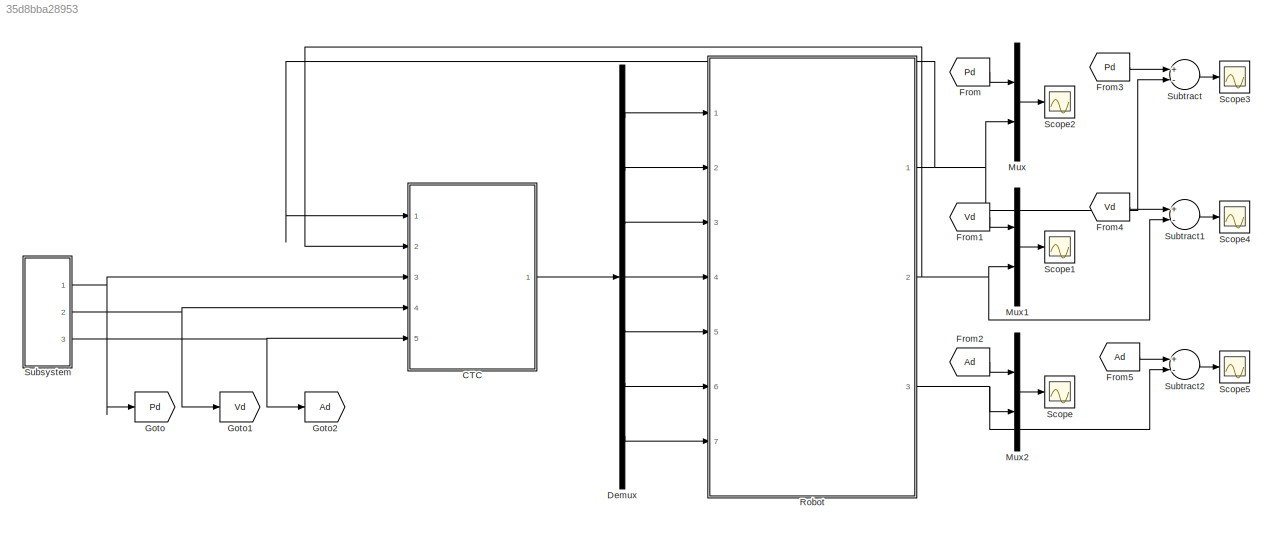
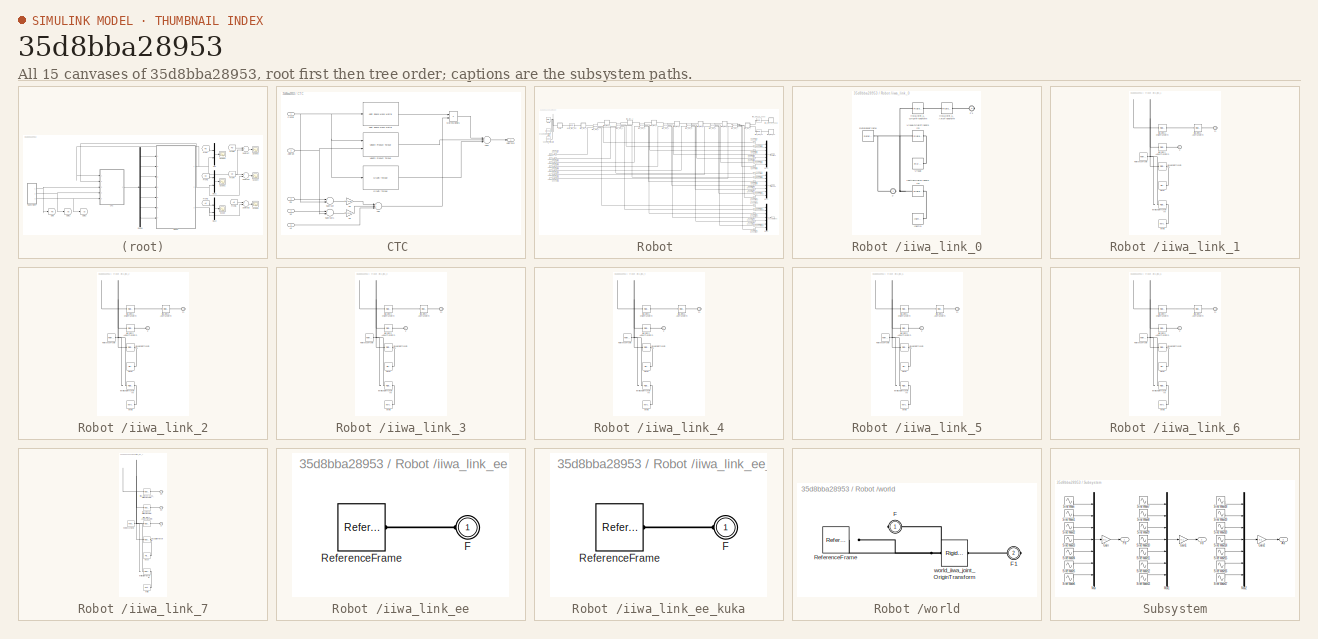
[diagram: thumbnail index - all 15 canvases of the model, root first then tree order]
MODEL slx_35d8bba28953
KIND model
CONFIG AbsTol = auto
CONFIG EnableMultiTasking = off
CONFIG FixedStep = auto
CONFIG MaxStep = auto
CONFIG MinStep = auto
CONFIG RelTol = 1e-3
CONFIG SampleTimeConstraint = Unconstrained
CONFIG Solver = VariableStepAuto
CONFIG SolverName = VariableStepAuto
CONFIG StartTime = 0.0
CONFIG StopTime = 10
BLOCK [SubSystem] CTC 
  Ports = [5, 1]
  RequestExecContextInheritance = off
BLOCK [Inport] CTC /Ad
  IconDisplay = Port number
  Port = 5
BLOCK [Sum] CTC /Add
  InputSameDT = off
  Inputs = +++
  OutDataTypeStr = Inherit: Inherit via internal rule
  Ports = [3, 1]
  SaturateOnIntegerOverflow = off
BLOCK [Sum] CTC /Add1
  InputSameDT = off
  Inputs = +++
  OutDataTypeStr = Inherit: Inherit via internal rule
  Ports = [3, 1]
  SaturateOnIntegerOverflow = off
BLOCK [Inport] CTC /Config
  IconDisplay = Port number
BLOCK [Reference] CTC /Gravity Torque  REF=robotmaniplib/Gravity Torque
  Ports = [1, 1]
  SourceBlock = robotmaniplib/Gravity Torque
  SourceProductBaseCode = RO
  SourceProductName = Robotics System Toolbox
  SourceType = Gravity Torque
BLOCK [Reference] CTC /Joint Space Mass Matrix  REF=robotmaniplib/Joint Space Mass Matrix
  Ports = [1, 1]
  SourceBlock = robotmaniplib/Joint Space Mass Matrix
  SourceProductBaseCode = RO
  SourceProductName = Robotics System Toolbox
  SourceType = Joint Space Mass Matrix
BLOCK [Outport] CTC /JointTorq
  IconDisplay = Port number
  VectorParamsAs1DForOutWhenUnconnected = off
BLOCK [Inport] CTC /JointVel 
  IconDisplay = Port number
  Port = 2
BLOCK [Gain] CTC /Kd
  Gain = 10*2*eye(7)
  Multiplication = Matrix(K*u)
  OutDataTypeStr = Inherit: Inherit via internal rule
  ParamDataTypeStr = Inherit: Inherit via internal rule
  SaturateOnIntegerOverflow = off
BLOCK [Gain] CTC /Kp
  Gain = 10^2*eye(7)
  Multiplication = Matrix(K*u)
  OutDataTypeStr = Inherit: Inherit via internal rule
  ParamDataTypeStr = Inherit: Inherit via internal rule
  SaturateOnIntegerOverflow = off
BLOCK [Product] CTC /MatrixMultiply1
  InputSameDT = off
  Multiplication = Matrix(*)
  OutDataTypeStr = Inherit: Inherit via internal rule
  Ports = [2, 1]
  RndMeth = Floor
  SaturateOnIntegerOverflow = off
BLOCK [Inport] CTC /Pd
  IconDisplay = Port number
  Port = 3
BLOCK [Sum] CTC /Subtract
  InputSameDT = off
  Inputs = +-
  OutDataTypeStr = Inherit: Inherit via internal rule
  Ports = [2, 1]
  SaturateOnIntegerOverflow = off
BLOCK [Sum] CTC /Subtract1
  InputSameDT = off
  Inputs = +-
  OutDataTypeStr = Inherit: Inherit via internal rule
  Ports = [2, 1]
  SaturateOnIntegerOverflow = off
BLOCK [Inport] CTC /Vd
  IconDisplay = Port number
  Port = 4
BLOCK [Reference] CTC /Velocity Product Torque  REF=robotmaniplib/Velocity Product Torque
  Ports = [2, 1]
  SourceBlock = robotmaniplib/Velocity Product Torque
  SourceProductBaseCode = RO
  SourceProductName = Robotics System Toolbox
  SourceType = Velocity Product Torque
BLOCK [Demux] Demux
  DisplayOption = bar
  Outputs = 7
  Ports = [1, 7]
BLOCK [From] From
  GotoTag = Pd
BLOCK [From] From1
  GotoTag = Vd
BLOCK [From] From2
  GotoTag = Ad
BLOCK [From] From3
  GotoTag = Pd
BLOCK [From] From4
  GotoTag = Vd
BLOCK [From] From5
  GotoTag = Ad
BLOCK [Goto] Goto
  GotoTag = Pd
BLOCK [Goto] Goto1
  GotoTag = Vd
BLOCK [Goto] Goto2
  GotoTag = Ad
BLOCK [Mux] Mux
  DisplayOption = bar
  Inputs = 2
  Ports = [2, 1]
BLOCK [Mux] Mux1
  DisplayOption = bar
  Inputs = 2
  Ports = [2, 1]
BLOCK [Mux] Mux2
  DisplayOption = bar
  Inputs = 2
  Ports = [2, 1]
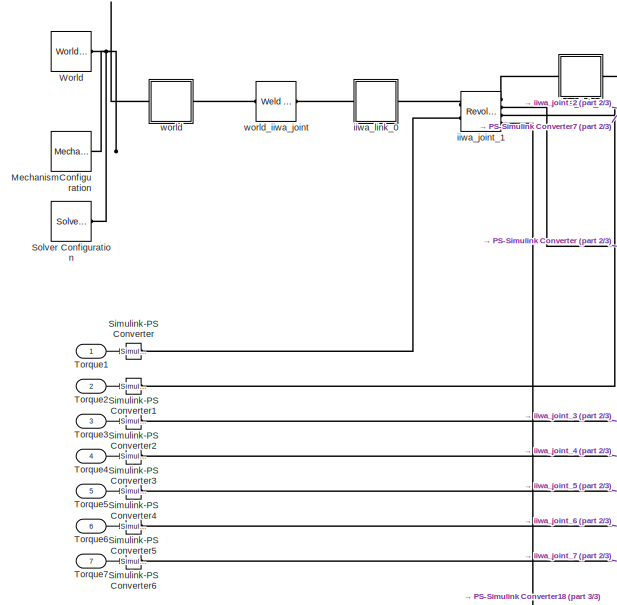
[diagram: Robot  - part 1/3, top left region]
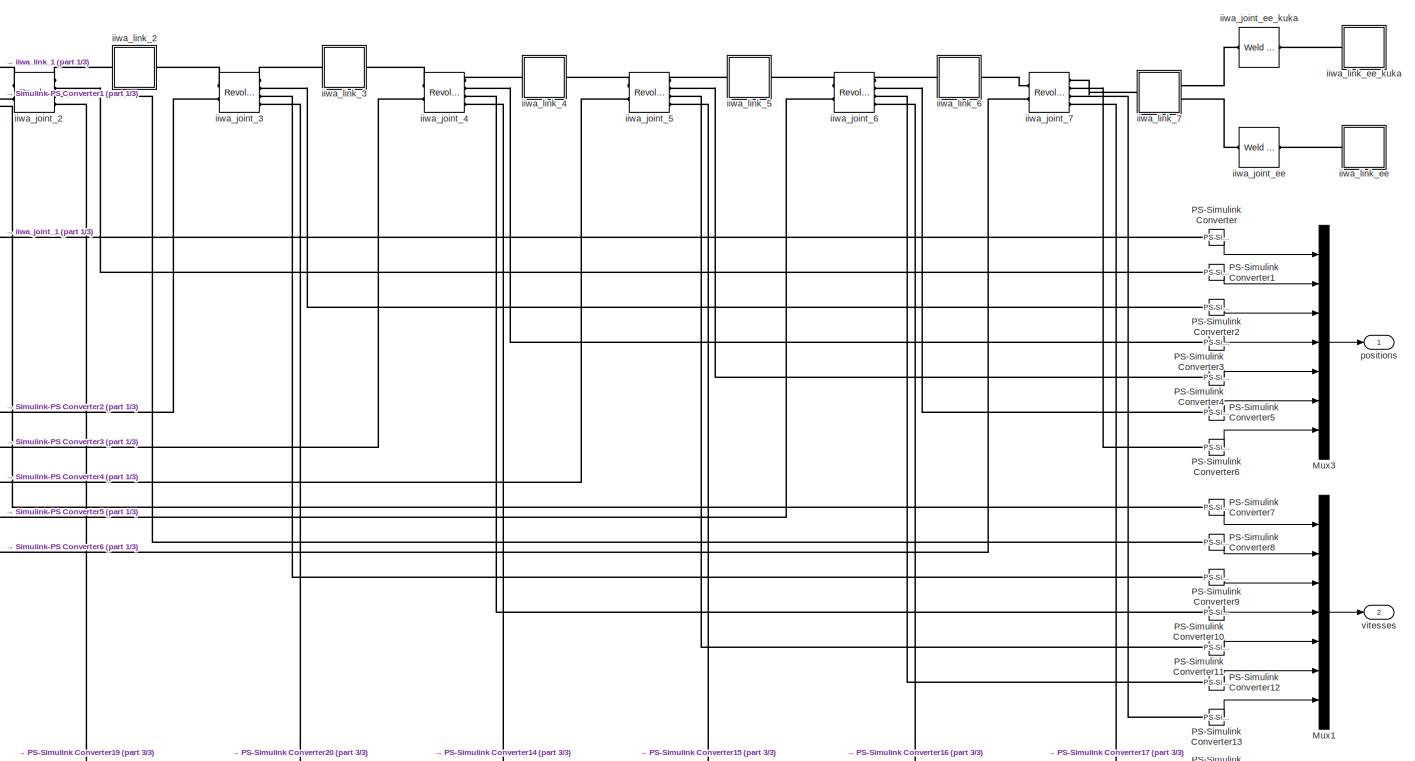
[diagram: Robot  - part 2/3, central region]
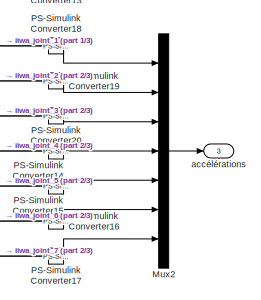
[diagram: Robot  - part 3/3, bottom right region]
BLOCK [SubSystem] Robot 
  Ports = [7, 3]
  RequestExecContextInheritance = off
BLOCK [Reference] Robot /MechanismConfiguration  REF=sm_lib/Utilities/Mechanism
Configuration
  Ports = [0, 0, 0, 0, 0, 0, 1]
  SourceBlock = sm_lib/Utilities/Mechanism\nConfiguration
  SourceProductBaseCode = MS
  SourceProductName = Simscape Multibody
  SourceType = Mechanism\nConfiguration
BLOCK [Mux] Robot /Mux1
  DisplayOption = bar
  Inputs = 7
  Ports = [7, 1]
BLOCK [Mux] Robot /Mux2
  DisplayOption = bar
  Inputs = 7
  Ports = [7, 1]
BLOCK [Mux] Robot /Mux3
  DisplayOption = bar
  Inputs = 7
  Ports = [7, 1]
BLOCK [Reference] Robot /PS-Simulink Converter  REF=nesl_utility/PS-Simulink
Converter
  Ports = [0, 1, 0, 0, 0, 1]
  SourceBlock = nesl_utility/PS-Simulink\nConverter
  SourceProductBaseCode = SS
  SourceProductName = Simscape
  SourceType = PS-Simulink\nConverter
BLOCK [Reference] Robot /PS-Simulink Converter1  REF=nesl_utility/PS-Simulink
Converter
  Ports = [0, 1, 0, 0, 0, 1]
  SourceBlock = nesl_utility/PS-Simulink\nConverter
  SourceProductBaseCode = SS
  SourceProductName = Simscape
  SourceType = PS-Simulink\nConverter
BLOCK [Reference] Robot /PS-Simulink Converter10  REF=nesl_utility/PS-Simulink
Converter
  Ports = [0, 1, 0, 0, 0, 1]
  SourceBlock = nesl_utility/PS-Simulink\nConverter
  SourceProductBaseCode = SS
  SourceProductName = Simscape
  SourceType = PS-Simulink\nConverter
BLOCK [Reference] Robot /PS-Simulink Converter11  REF=nesl_utility/PS-Simulink
Converter
  Ports = [0, 1, 0, 0, 0, 1]
  SourceBlock = nesl_utility/PS-Simulink\nConverter
  SourceProductBaseCode = SS
  SourceProductName = Simscape
  SourceType = PS-Simulink\nConverter
BLOCK [Reference] Robot /PS-Simulink Converter12  REF=nesl_utility/PS-Simulink
Converter
  Ports = [0, 1, 0, 0, 0, 1]
  SourceBlock = nesl_utility/PS-Simulink\nConverter
  SourceProductBaseCode = SS
  SourceProductName = Simscape
  SourceType = PS-Simulink\nConverter
BLOCK [Reference] Robot /PS-Simulink Converter13  REF=nesl_utility/PS-Simulink
Converter
  Ports = [0, 1, 0, 0, 0, 1]
  SourceBlock = nesl_utility/PS-Simulink\nConverter
  SourceProductBaseCode = SS
  SourceProductName = Simscape
  SourceType = PS-Simulink\nConverter
BLOCK [Reference] Robot /PS-Simulink Converter14  REF=nesl_utility/PS-Simulink
Converter
  Ports = [0, 1, 0, 0, 0, 1]
  SourceBlock = nesl_utility/PS-Simulink\nConverter
  SourceProductBaseCode = SS
  SourceProductName = Simscape
  SourceType = PS-Simulink\nConverter
BLOCK [Reference] Robot /PS-Simulink Converter15  REF=nesl_utility/PS-Simulink
Converter
  Ports = [0, 1, 0, 0, 0, 1]
  SourceBlock = nesl_utility/PS-Simulink\nConverter
  SourceProductBaseCode = SS
  SourceProductName = Simscape
  SourceType = PS-Simulink\nConverter
BLOCK [Reference] Robot /PS-Simulink Converter16  REF=nesl_utility/PS-Simulink
Converter
  Ports = [0, 1, 0, 0, 0, 1]
  SourceBlock = nesl_utility/PS-Simulink\nConverter
  SourceProductBaseCode = SS
  SourceProductName = Simscape
  SourceType = PS-Simulink\nConverter
BLOCK [Reference] Robot /PS-Simulink Converter17  REF=nesl_utility/PS-Simulink
Converter
  Ports = [0, 1, 0, 0, 0, 1]
  SourceBlock = nesl_utility/PS-Simulink\nConverter
  SourceProductBaseCode = SS
  SourceProductName = Simscape
  SourceType = PS-Simulink\nConverter
BLOCK [Reference] Robot /PS-Simulink Converter18  REF=nesl_utility/PS-Simulink
Converter
  Ports = [0, 1, 0, 0, 0, 1]
  SourceBlock = nesl_utility/PS-Simulink\nConverter
  SourceProductBaseCode = SS
  SourceProductName = Simscape
  SourceType = PS-Simulink\nConverter
BLOCK [Reference] Robot /PS-Simulink Converter19  REF=nesl_utility/PS-Simulink
Converter
  Ports = [0, 1, 0, 0, 0, 1]
  SourceBlock = nesl_utility/PS-Simulink\nConverter
  SourceProductBaseCode = SS
  SourceProductName = Simscape
  SourceType = PS-Simulink\nConverter
BLOCK [Reference] Robot /PS-Simulink Converter2  REF=nesl_utility/PS-Simulink
Converter
  Ports = [0, 1, 0, 0, 0, 1]
  SourceBlock = nesl_utility/PS-Simulink\nConverter
  SourceProductBaseCode = SS
  SourceProductName = Simscape
  SourceType = PS-Simulink\nConverter
BLOCK [Reference] Robot /PS-Simulink Converter20  REF=nesl_utility/PS-Simulink
Converter
  Ports = [0, 1, 0, 0, 0, 1]
  SourceBlock = nesl_utility/PS-Simulink\nConverter
  SourceProductBaseCode = SS
  SourceProductName = Simscape
  SourceType = PS-Simulink\nConverter
BLOCK [Reference] Robot /PS-Simulink Converter3  REF=nesl_utility/PS-Simulink
Converter
  Ports = [0, 1, 0, 0, 0, 1]
  SourceBlock = nesl_utility/PS-Simulink\nConverter
  SourceProductBaseCode = SS
  SourceProductName = Simscape
  SourceType = PS-Simulink\nConverter
BLOCK [Reference] Robot /PS-Simulink Converter4  REF=nesl_utility/PS-Simulink
Converter
  Ports = [0, 1, 0, 0, 0, 1]
  SourceBlock = nesl_utility/PS-Simulink\nConverter
  SourceProductBaseCode = SS
  SourceProductName = Simscape
  SourceType = PS-Simulink\nConverter
BLOCK [Reference] Robot /PS-Simulink Converter5  REF=nesl_utility/PS-Simulink
Converter
  Ports = [0, 1, 0, 0, 0, 1]
  SourceBlock = nesl_utility/PS-Simulink\nConverter
  SourceProductBaseCode = SS
  SourceProductName = Simscape
  SourceType = PS-Simulink\nConverter
BLOCK [Reference] Robot /PS-Simulink Converter6  REF=nesl_utility/PS-Simulink
Converter
  Ports = [0, 1, 0, 0, 0, 1]
  SourceBlock = nesl_utility/PS-Simulink\nConverter
  SourceProductBaseCode = SS
  SourceProductName = Simscape
  SourceType = PS-Simulink\nConverter
BLOCK [Reference] Robot /PS-Simulink Converter7  REF=nesl_utility/PS-Simulink
Converter
  Ports = [0, 1, 0, 0, 0, 1]
  SourceBlock = nesl_utility/PS-Simulink\nConverter
  SourceProductBaseCode = SS
  SourceProductName = Simscape
  SourceType = PS-Simulink\nConverter
BLOCK [Reference] Robot /PS-Simulink Converter8  REF=nesl_utility/PS-Simulink
Converter
  Ports = [0, 1, 0, 0, 0, 1]
  SourceBlock = nesl_utility/PS-Simulink\nConverter
  SourceProductBaseCode = SS
  SourceProductName = Simscape
  SourceType = PS-Simulink\nConverter
BLOCK [Reference] Robot /PS-Simulink Converter9  REF=nesl_utility/PS-Simulink
Converter
  Ports = [0, 1, 0, 0, 0, 1]
  SourceBlock = nesl_utility/PS-Simulink\nConverter
  SourceProductBaseCode = SS
  SourceProductName = Simscape
  SourceType = PS-Simulink\nConverter
BLOCK [Reference] Robot /Simulink-PS Converter  REF=nesl_utility/Simulink-PS
Converter
  Ports = [1, 0, 0, 0, 0, 0, 1]
  SourceBlock = nesl_utility/Simulink-PS\nConverter
  SourceProductBaseCode = SS
  SourceProductName = Simscape
  SourceType = Simulink-PS\nConverter
BLOCK [Reference] Robot /Simulink-PS Converter1  REF=nesl_utility/Simulink-PS
Converter
  Ports = [1, 0, 0, 0, 0, 0, 1]
  SourceBlock = nesl_utility/Simulink-PS\nConverter
  SourceProductBaseCode = SS
  SourceProductName = Simscape
  SourceType = Simulink-PS\nConverter
BLOCK [Reference] Robot /Simulink-PS Converter2  REF=nesl_utility/Simulink-PS
Converter
  Ports = [1, 0, 0, 0, 0, 0, 1]
  SourceBlock = nesl_utility/Simulink-PS\nConverter
  SourceProductBaseCode = SS
  SourceProductName = Simscape
  SourceType = Simulink-PS\nConverter
BLOCK [Reference] Robot /Simulink-PS Converter3  REF=nesl_utility/Simulink-PS
Converter
  Ports = [1, 0, 0, 0, 0, 0, 1]
  SourceBlock = nesl_utility/Simulink-PS\nConverter
  SourceProductBaseCode = SS
  SourceProductName = Simscape
  SourceType = Simulink-PS\nConverter
BLOCK [Reference] Robot /Simulink-PS Converter4  REF=nesl_utility/Simulink-PS
Converter
  Ports = [1, 0, 0, 0, 0, 0, 1]
  SourceBlock = nesl_utility/Simulink-PS\nConverter
  SourceProductBaseCode = SS
  SourceProductName = Simscape
  SourceType = Simulink-PS\nConverter
BLOCK [Reference] Robot /Simulink-PS Converter5  REF=nesl_utility/Simulink-PS
Converter
  Ports = [1, 0, 0, 0, 0, 0, 1]
  SourceBlock = nesl_utility/Simulink-PS\nConverter
  SourceProductBaseCode = SS
  SourceProductName = Simscape
  SourceType = Simulink-PS\nConverter
BLOCK [Reference] Robot /Simulink-PS Converter6  REF=nesl_utility/Simulink-PS
Converter
  Ports = [1, 0, 0, 0, 0, 0, 1]
  SourceBlock = nesl_utility/Simulink-PS\nConverter
  SourceProductBaseCode = SS
  SourceProductName = Simscape
  SourceType = Simulink-PS\nConverter
BLOCK [Reference] Robot /Solver Configuration  REF=nesl_utility/Solver
Configuration
  Ports = [0, 0, 0, 0, 0, 0, 1]
  SourceBlock = nesl_utility/Solver\nConfiguration
  SourceProductBaseCode = SS
  SourceProductName = Simscape
  SourceType = Solver\nConfiguration
BLOCK [Inport] Robot /Torque1
  IconDisplay = Port number
BLOCK [Inport] Robot /Torque2
  IconDisplay = Port number
  Port = 2
BLOCK [Inport] Robot /Torque3
  IconDisplay = Port number
  Port = 3
BLOCK [Inport] Robot /Torque4
  IconDisplay = Port number
  Port = 4
BLOCK [Inport] Robot /Torque5
  IconDisplay = Port number
  Port = 5
BLOCK [Inport] Robot /Torque6
  IconDisplay = Port number
  Port = 6
BLOCK [Inport] Robot /Torque7
  IconDisplay = Port number
  Port = 7
BLOCK [Reference] Robot /World  REF=sm_lib/Frames and
Transforms/World Frame
  Ports = [0, 0, 0, 0, 0, 0, 1]
  SourceBlock = sm_lib/Frames and\nTransforms/World Frame
  SourceProductBaseCode = MS
  SourceProductName = Simscape Multibody
  SourceType = World Frame
BLOCK [Outport] Robot /accélérations 
  IconDisplay = Port number
  Port = 3
  VectorParamsAs1DForOutWhenUnconnected = off
BLOCK [Reference] Robot /iiwa_joint_1  REF=sm_lib/Joints/Revolute Joint
  Ports = [0, 0, 0, 0, 0, 2, 4]
  SourceBlock = sm_lib/Joints/Revolute Joint
  SourceProductBaseCode = MS
  SourceProductName = Simscape Multibody
  SourceType = Revolute Joint
BLOCK [Reference] Robot /iiwa_joint_2  REF=sm_lib/Joints/Revolute Joint
  Ports = [0, 0, 0, 0, 0, 2, 4]
  SourceBlock = sm_lib/Joints/Revolute Joint
  SourceProductBaseCode = MS
  SourceProductName = Simscape Multibody
  SourceType = Revolute Joint
BLOCK [Reference] Robot /iiwa_joint_3  REF=sm_lib/Joints/Revolute Joint
  Ports = [0, 0, 0, 0, 0, 2, 4]
  SourceBlock = sm_lib/Joints/Revolute Joint
  SourceProductBaseCode = MS
  SourceProductName = Simscape Multibody
  SourceType = Revolute Joint
BLOCK [Reference] Robot /iiwa_joint_4  REF=sm_lib/Joints/Revolute Joint
  Ports = [0, 0, 0, 0, 0, 2, 4]
  SourceBlock = sm_lib/Joints/Revolute Joint
  SourceProductBaseCode = MS
  SourceProductName = Simscape Multibody
  SourceType = Revolute Joint
BLOCK [Reference] Robot /iiwa_joint_5  REF=sm_lib/Joints/Revolute Joint
  Ports = [0, 0, 0, 0, 0, 2, 4]
  SourceBlock = sm_lib/Joints/Revolute Joint
  SourceProductBaseCode = MS
  SourceProductName = Simscape Multibody
  SourceType = Revolute Joint
BLOCK [Reference] Robot /iiwa_joint_6  REF=sm_lib/Joints/Revolute Joint
  Ports = [0, 0, 0, 0, 0, 2, 4]
  SourceBlock = sm_lib/Joints/Revolute Joint
  SourceProductBaseCode = MS
  SourceProductName = Simscape Multibody
  SourceType = Revolute Joint
BLOCK [Reference] Robot /iiwa_joint_7  REF=sm_lib/Joints/Revolute Joint
  Ports = [0, 0, 0, 0, 0, 2, 4]
  SourceBlock = sm_lib/Joints/Revolute Joint
  SourceProductBaseCode = MS
  SourceProductName = Simscape Multibody
  SourceType = Revolute Joint
BLOCK [Reference] Robot /iiwa_joint_ee  REF=sm_lib/Joints/Weld Joint
  Ports = [0, 0, 0, 0, 0, 1, 1]
  SourceBlock = sm_lib/Joints/Weld Joint
  SourceProductBaseCode = MS
  SourceProductName = Simscape Multibody
  SourceType = Weld Joint
BLOCK [Reference] Robot /iiwa_joint_ee_kuka  REF=sm_lib/Joints/Weld Joint
  Ports = [0, 0, 0, 0, 0, 1, 1]
  SourceBlock = sm_lib/Joints/Weld Joint
  SourceProductBaseCode = MS
  SourceProductName = Simscape Multibody
  SourceType = Weld Joint
BLOCK [SubSystem] Robot /iiwa_link_0
  Ports = [0, 0, 0, 0, 0, 1, 1]
  RequestExecContextInheritance = off
BLOCK [PMIOPort] Robot /iiwa_link_0/F
  Side = Left
BLOCK [PMIOPort] Robot /iiwa_link_0/F1
  Port = 2
  Side = Right
BLOCK [Reference] Robot /iiwa_link_0/Inertia  REF=sm_lib/Body Elements/Inertia
  Ports = [0, 0, 0, 0, 0, 0, 1]
  SourceBlock = sm_lib/Body Elements/Inertia
  SourceProductBaseCode = MS
  SourceProductName = Simscape Multibody
  SourceType = Inertia
BLOCK [Reference] Robot /iiwa_link_0/InertiaOriginTransform  REF=sm_lib/Frames and
Transforms/Rigid
Transform
  Ports = [0, 0, 0, 0, 0, 1, 1]
  SourceBlock = sm_lib/Frames and\nTransforms/Rigid\nTransform
  SourceProductBaseCode = MS
  SourceProductName = Simscape Multibody
  SourceType = Rigid\nTransform
BLOCK [Reference] Robot /iiwa_link_0/ReferenceFrame  REF=sm_lib/Frames and
Transforms/Reference
Frame
  Ports = [0, 0, 0, 0, 0, 0, 1]
  SourceBlock = sm_lib/Frames and\nTransforms/Reference\nFrame
  SourceProductBaseCode = MS
  SourceProductName = Simscape Multibody
  SourceType = Reference\nFrame
BLOCK [Reference] Robot /iiwa_link_0/Visual  REF=sm_lib/Body Elements/File Solid
  Ports = [0, 0, 0, 0, 0, 0, 1]
  SourceBlock = sm_lib/Body Elements/File Solid
  SourceProductBaseCode = MS
  SourceProductName = Simscape Multibody
  SourceType = File Solid
BLOCK [Reference] Robot /iiwa_link_0/VisualOriginTransform  REF=sm_lib/Frames and
Transforms/Rigid
Transform
  Ports = [0, 0, 0, 0, 0, 1, 1]
  SourceBlock = sm_lib/Frames and\nTransforms/Rigid\nTransform
  SourceProductBaseCode = MS
  SourceProductName = Simscape Multibody
  SourceType = Rigid\nTransform
BLOCK [Reference] Robot /iiwa_link_0/iiwa_joint_1_AxisTransform  REF=sm_lib/Frames and
Transforms/Rigid
Transform
  Ports = [0, 0, 0, 0, 0, 1, 1]
  SourceBlock = sm_lib/Frames and\nTransforms/Rigid\nTransform
  SourceProductBaseCode = MS
  SourceProductName = Simscape Multibody
  SourceType = Rigid\nTransform
BLOCK [Reference] Robot /iiwa_link_0/iiwa_joint_1_OriginTransform  REF=sm_lib/Frames and
Transforms/Rigid
Transform
  Ports = [0, 0, 0, 0, 0, 1, 1]
  SourceBlock = sm_lib/Frames and\nTransforms/Rigid\nTransform
  SourceProductBaseCode = MS
  SourceProductName = Simscape Multibody
  SourceType = Rigid\nTransform
BLOCK [SubSystem] Robot /iiwa_link_1
  Ports = [0, 0, 0, 0, 0, 1, 1]
  RequestExecContextInheritance = off
BLOCK [PMIOPort] Robot /iiwa_link_1/F
  Side = Left
BLOCK [PMIOPort] Robot /iiwa_link_1/F1
  Port = 2
  Side = Right
BLOCK [Reference] Robot /iiwa_link_1/Inertia  REF=sm_lib/Body Elements/Inertia
  Ports = [0, 0, 0, 0, 0, 0, 1]
  SourceBlock = sm_lib/Body Elements/Inertia
  SourceProductBaseCode = MS
  SourceProductName = Simscape Multibody
  SourceType = Inertia
BLOCK [Reference] Robot /iiwa_link_1/InertiaOriginTransform  REF=sm_lib/Frames and
Transforms/Rigid
Transform
  Ports = [0, 0, 0, 0, 0, 1, 1]
  SourceBlock = sm_lib/Frames and\nTransforms/Rigid\nTransform
  SourceProductBaseCode = MS
  SourceProductName = Simscape Multibody
  SourceType = Rigid\nTransform
BLOCK [Reference] Robot /iiwa_link_1/ReferenceFrame  REF=sm_lib/Frames and
Transforms/Reference
Frame
  Ports = [0, 0, 0, 0, 0, 0, 1]
  SourceBlock = sm_lib/Frames and\nTransforms/Reference\nFrame
  SourceProductBaseCode = MS
  SourceProductName = Simscape Multibody
  SourceType = Reference\nFrame
BLOCK [Reference] Robot /iiwa_link_1/Visual  REF=sm_lib/Body Elements/File Solid
  Ports = [0, 0, 0, 0, 0, 0, 1]
  SourceBlock = sm_lib/Body Elements/File Solid
  SourceProductBaseCode = MS
  SourceProductName = Simscape Multibody
  SourceType = File Solid
BLOCK [Reference] Robot /iiwa_link_1/VisualOriginTransform  REF=sm_lib/Frames and
Transforms/Rigid
Transform
  Ports = [0, 0, 0, 0, 0, 1, 1]
  SourceBlock = sm_lib/Frames and\nTransforms/Rigid\nTransform
  SourceProductBaseCode = MS
  SourceProductName = Simscape Multibody
  SourceType = Rigid\nTransform
BLOCK [Reference] Robot /iiwa_link_1/iiwa_joint_1_AxisInvTransform  REF=sm_lib/Frames and
Transforms/Rigid
Transform
  Ports = [0, 0, 0, 0, 0, 1, 1]
  SourceBlock = sm_lib/Frames and\nTransforms/Rigid\nTransform
  SourceProductBaseCode = MS
  SourceProductName = Simscape Multibody
  SourceType = Rigid\nTransform
BLOCK [Reference] Robot /iiwa_link_1/iiwa_joint_2_AxisTransform  REF=sm_lib/Frames and
Transforms/Rigid
Transform
  Ports = [0, 0, 0, 0, 0, 1, 1]
  SourceBlock = sm_lib/Frames and\nTransforms/Rigid\nTransform
  SourceProductBaseCode = MS
  SourceProductName = Simscape Multibody
  SourceType = Rigid\nTransform
BLOCK [Reference] Robot /iiwa_link_1/iiwa_joint_2_OriginTransform  REF=sm_lib/Frames and
Transforms/Rigid
Transform
  Ports = [0, 0, 0, 0, 0, 1, 1]
  SourceBlock = sm_lib/Frames and\nTransforms/Rigid\nTransform
  SourceProductBaseCode = MS
  SourceProductName = Simscape Multibody
  SourceType = Rigid\nTransform
BLOCK [SubSystem] Robot /iiwa_link_2
  Ports = [0, 0, 0, 0, 0, 1, 1]
  RequestExecContextInheritance = off
BLOCK [PMIOPort] Robot /iiwa_link_2/F
  Side = Left
BLOCK [PMIOPort] Robot /iiwa_link_2/F1
  Port = 2
  Side = Right
BLOCK [Reference] Robot /iiwa_link_2/Inertia  REF=sm_lib/Body Elements/Inertia
  Ports = [0, 0, 0, 0, 0, 0, 1]
  SourceBlock = sm_lib/Body Elements/Inertia
  SourceProductBaseCode = MS
  SourceProductName = Simscape Multibody
  SourceType = Inertia
BLOCK [Reference] Robot /iiwa_link_2/InertiaOriginTransform  REF=sm_lib/Frames and
Transforms/Rigid
Transform
  Ports = [0, 0, 0, 0, 0, 1, 1]
  SourceBlock = sm_lib/Frames and\nTransforms/Rigid\nTransform
  SourceProductBaseCode = MS
  SourceProductName = Simscape Multibody
  SourceType = Rigid\nTransform
BLOCK [Reference] Robot /iiwa_link_2/ReferenceFrame  REF=sm_lib/Frames and
Transforms/Reference
Frame
  Ports = [0, 0, 0, 0, 0, 0, 1]
  SourceBlock = sm_lib/Frames and\nTransforms/Reference\nFrame
  SourceProductBaseCode = MS
  SourceProductName = Simscape Multibody
  SourceType = Reference\nFrame
BLOCK [Reference] Robot /iiwa_link_2/Visual  REF=sm_lib/Body Elements/File Solid
  Ports = [0, 0, 0, 0, 0, 0, 1]
  SourceBlock = sm_lib/Body Elements/File Solid
  SourceProductBaseCode = MS
  SourceProductName = Simscape Multibody
  SourceType = File Solid
BLOCK [Reference] Robot /iiwa_link_2/VisualOriginTransform  REF=sm_lib/Frames and
Transforms/Rigid
Transform
  Ports = [0, 0, 0, 0, 0, 1, 1]
  SourceBlock = sm_lib/Frames and\nTransforms/Rigid\nTransform
  SourceProductBaseCode = MS
  SourceProductName = Simscape Multibody
  SourceType = Rigid\nTransform
BLOCK [Reference] Robot /iiwa_link_2/iiwa_joint_2_AxisInvTransform  REF=sm_lib/Frames and
Transforms/Rigid
Transform
  Ports = [0, 0, 0, 0, 0, 1, 1]
  SourceBlock = sm_lib/Frames and\nTransforms/Rigid\nTransform
  SourceProductBaseCode = MS
  SourceProductName = Simscape Multibody
  SourceType = Rigid\nTransform
BLOCK [Reference] Robot /iiwa_link_2/iiwa_joint_3_AxisTransform  REF=sm_lib/Frames and
Transforms/Rigid
Transform
  Ports = [0, 0, 0, 0, 0, 1, 1]
  SourceBlock = sm_lib/Frames and\nTransforms/Rigid\nTransform
  SourceProductBaseCode = MS
  SourceProductName = Simscape Multibody
  SourceType = Rigid\nTransform
BLOCK [Reference] Robot /iiwa_link_2/iiwa_joint_3_OriginTransform  REF=sm_lib/Frames and
Transforms/Rigid
Transform
  Ports = [0, 0, 0, 0, 0, 1, 1]
  SourceBlock = sm_lib/Frames and\nTransforms/Rigid\nTransform
  SourceProductBaseCode = MS
  SourceProductName = Simscape Multibody
  SourceType = Rigid\nTransform
BLOCK [SubSystem] Robot /iiwa_link_3
  Ports = [0, 0, 0, 0, 0, 1, 1]
  RequestExecContextInheritance = off
BLOCK [PMIOPort] Robot /iiwa_link_3/F
  Side = Left
BLOCK [PMIOPort] Robot /iiwa_link_3/F1
  Port = 2
  Side = Right
BLOCK [Reference] Robot /iiwa_link_3/Inertia  REF=sm_lib/Body Elements/Inertia
  Ports = [0, 0, 0, 0, 0, 0, 1]
  SourceBlock = sm_lib/Body Elements/Inertia
  SourceProductBaseCode = MS
  SourceProductName = Simscape Multibody
  SourceType = Inertia
BLOCK [Reference] Robot /iiwa_link_3/InertiaOriginTransform  REF=sm_lib/Frames and
Transforms/Rigid
Transform
  Ports = [0, 0, 0, 0, 0, 1, 1]
  SourceBlock = sm_lib/Frames and\nTransforms/Rigid\nTransform
  SourceProductBaseCode = MS
  SourceProductName = Simscape Multibody
  SourceType = Rigid\nTransform
BLOCK [Reference] Robot /iiwa_link_3/ReferenceFrame  REF=sm_lib/Frames and
Transforms/Reference
Frame
  Ports = [0, 0, 0, 0, 0, 0, 1]
  SourceBlock = sm_lib/Frames and\nTransforms/Reference\nFrame
  SourceProductBaseCode = MS
  SourceProductName = Simscape Multibody
  SourceType = Reference\nFrame
BLOCK [Reference] Robot /iiwa_link_3/Visual  REF=sm_lib/Body Elements/File Solid
  Ports = [0, 0, 0, 0, 0, 0, 1]
  SourceBlock = sm_lib/Body Elements/File Solid
  SourceProductBaseCode = MS
  SourceProductName = Simscape Multibody
  SourceType = File Solid
BLOCK [Reference] Robot /iiwa_link_3/VisualOriginTransform  REF=sm_lib/Frames and
Transforms/Rigid
Transform
  Ports = [0, 0, 0, 0, 0, 1, 1]
  SourceBlock = sm_lib/Frames and\nTransforms/Rigid\nTransform
  SourceProductBaseCode = MS
  SourceProductName = Simscape Multibody
  SourceType = Rigid\nTransform
BLOCK [Reference] Robot /iiwa_link_3/iiwa_joint_3_AxisInvTransform  REF=sm_lib/Frames and
Transforms/Rigid
Transform
  Ports = [0, 0, 0, 0, 0, 1, 1]
  SourceBlock = sm_lib/Frames and\nTransforms/Rigid\nTransform
  SourceProductBaseCode = MS
  SourceProductName = Simscape Multibody
  SourceType = Rigid\nTransform
BLOCK [Reference] Robot /iiwa_link_3/iiwa_joint_4_AxisTransform  REF=sm_lib/Frames and
Transforms/Rigid
Transform
  Ports = [0, 0, 0, 0, 0, 1, 1]
  SourceBlock = sm_lib/Frames and\nTransforms/Rigid\nTransform
  SourceProductBaseCode = MS
  SourceProductName = Simscape Multibody
  SourceType = Rigid\nTransform
BLOCK [Reference] Robot /iiwa_link_3/iiwa_joint_4_OriginTransform  REF=sm_lib/Frames and
Transforms/Rigid
Transform
  Ports = [0, 0, 0, 0, 0, 1, 1]
  SourceBlock = sm_lib/Frames and\nTransforms/Rigid\nTransform
  SourceProductBaseCode = MS
  SourceProductName = Simscape Multibody
  SourceType = Rigid\nTransform
BLOCK [SubSystem] Robot /iiwa_link_4
  Ports = [0, 0, 0, 0, 0, 1, 1]
  RequestExecContextInheritance = off
BLOCK [PMIOPort] Robot /iiwa_link_4/F
  Side = Left
BLOCK [PMIOPort] Robot /iiwa_link_4/F1
  Port = 2
  Side = Right
BLOCK [Reference] Robot /iiwa_link_4/Inertia  REF=sm_lib/Body Elements/Inertia
  Ports = [0, 0, 0, 0, 0, 0, 1]
  SourceBlock = sm_lib/Body Elements/Inertia
  SourceProductBaseCode = MS
  SourceProductName = Simscape Multibody
  SourceType = Inertia
BLOCK [Reference] Robot /iiwa_link_4/InertiaOriginTransform  REF=sm_lib/Frames and
Transforms/Rigid
Transform
  Ports = [0, 0, 0, 0, 0, 1, 1]
  SourceBlock = sm_lib/Frames and\nTransforms/Rigid\nTransform
  SourceProductBaseCode = MS
  SourceProductName = Simscape Multibody
  SourceType = Rigid\nTransform
BLOCK [Reference] Robot /iiwa_link_4/ReferenceFrame  REF=sm_lib/Frames and
Transforms/Reference
Frame
  Ports = [0, 0, 0, 0, 0, 0, 1]
  SourceBlock = sm_lib/Frames and\nTransforms/Reference\nFrame
  SourceProductBaseCode = MS
  SourceProductName = Simscape Multibody
  SourceType = Reference\nFrame
BLOCK [Reference] Robot /iiwa_link_4/Visual  REF=sm_lib/Body Elements/File Solid
  Ports = [0, 0, 0, 0, 0, 0, 1]
  SourceBlock = sm_lib/Body Elements/File Solid
  SourceProductBaseCode = MS
  SourceProductName = Simscape Multibody
  SourceType = File Solid
BLOCK [Reference] Robot /iiwa_link_4/VisualOriginTransform  REF=sm_lib/Frames and
Transforms/Rigid
Transform
  Ports = [0, 0, 0, 0, 0, 1, 1]
  SourceBlock = sm_lib/Frames and\nTransforms/Rigid\nTransform
  SourceProductBaseCode = MS
  SourceProductName = Simscape Multibody
  SourceType = Rigid\nTransform
BLOCK [Reference] Robot /iiwa_link_4/iiwa_joint_4_AxisInvTransform  REF=sm_lib/Frames and
Transforms/Rigid
Transform
  Ports = [0, 0, 0, 0, 0, 1, 1]
  SourceBlock = sm_lib/Frames and\nTransforms/Rigid\nTransform
  SourceProductBaseCode = MS
  SourceProductName = Simscape Multibody
  SourceType = Rigid\nTransform
BLOCK [Reference] Robot /iiwa_link_4/iiwa_joint_5_AxisTransform  REF=sm_lib/Frames and
Transforms/Rigid
Transform
  Ports = [0, 0, 0, 0, 0, 1, 1]
  SourceBlock = sm_lib/Frames and\nTransforms/Rigid\nTransform
  SourceProductBaseCode = MS
  SourceProductName = Simscape Multibody
  SourceType = Rigid\nTransform
BLOCK [Reference] Robot /iiwa_link_4/iiwa_joint_5_OriginTransform  REF=sm_lib/Frames and
Transforms/Rigid
Transform
  Ports = [0, 0, 0, 0, 0, 1, 1]
  SourceBlock = sm_lib/Frames and\nTransforms/Rigid\nTransform
  SourceProductBaseCode = MS
  SourceProductName = Simscape Multibody
  SourceType = Rigid\nTransform
BLOCK [SubSystem] Robot /iiwa_link_5
  Ports = [0, 0, 0, 0, 0, 1, 1]
  RequestExecContextInheritance = off
BLOCK [PMIOPort] Robot /iiwa_link_5/F
  Side = Left
BLOCK [PMIOPort] Robot /iiwa_link_5/F1
  Port = 2
  Side = Right
BLOCK [Reference] Robot /iiwa_link_5/Inertia  REF=sm_lib/Body Elements/Inertia
  Ports = [0, 0, 0, 0, 0, 0, 1]
  SourceBlock = sm_lib/Body Elements/Inertia
  SourceProductBaseCode = MS
  SourceProductName = Simscape Multibody
  SourceType = Inertia
BLOCK [Reference] Robot /iiwa_link_5/InertiaOriginTransform  REF=sm_lib/Frames and
Transforms/Rigid
Transform
  Ports = [0, 0, 0, 0, 0, 1, 1]
  SourceBlock = sm_lib/Frames and\nTransforms/Rigid\nTransform
  SourceProductBaseCode = MS
  SourceProductName = Simscape Multibody
  SourceType = Rigid\nTransform
BLOCK [Reference] Robot /iiwa_link_5/ReferenceFrame  REF=sm_lib/Frames and
Transforms/Reference
Frame
  Ports = [0, 0, 0, 0, 0, 0, 1]
  SourceBlock = sm_lib/Frames and\nTransforms/Reference\nFrame
  SourceProductBaseCode = MS
  SourceProductName = Simscape Multibody
  SourceType = Reference\nFrame
BLOCK [Reference] Robot /iiwa_link_5/Visual  REF=sm_lib/Body Elements/File Solid
  Ports = [0, 0, 0, 0, 0, 0, 1]
  SourceBlock = sm_lib/Body Elements/File Solid
  SourceProductBaseCode = MS
  SourceProductName = Simscape Multibody
  SourceType = File Solid
BLOCK [Reference] Robot /iiwa_link_5/VisualOriginTransform  REF=sm_lib/Frames and
Transforms/Rigid
Transform
  Ports = [0, 0, 0, 0, 0, 1, 1]
  SourceBlock = sm_lib/Frames and\nTransforms/Rigid\nTransform
  SourceProductBaseCode = MS
  SourceProductName = Simscape Multibody
  SourceType = Rigid\nTransform
BLOCK [Reference] Robot /iiwa_link_5/iiwa_joint_5_AxisInvTransform  REF=sm_lib/Frames and
Transforms/Rigid
Transform
  Ports = [0, 0, 0, 0, 0, 1, 1]
  SourceBlock = sm_lib/Frames and\nTransforms/Rigid\nTransform
  SourceProductBaseCode = MS
  SourceProductName = Simscape Multibody
  SourceType = Rigid\nTransform
BLOCK [Reference] Robot /iiwa_link_5/iiwa_joint_6_AxisTransform  REF=sm_lib/Frames and
Transforms/Rigid
Transform
  Ports = [0, 0, 0, 0, 0, 1, 1]
  SourceBlock = sm_lib/Frames and\nTransforms/Rigid\nTransform
  SourceProductBaseCode = MS
  SourceProductName = Simscape Multibody
  SourceType = Rigid\nTransform
BLOCK [Reference] Robot /iiwa_link_5/iiwa_joint_6_OriginTransform  REF=sm_lib/Frames and
Transforms/Rigid
Transform
  Ports = [0, 0, 0, 0, 0, 1, 1]
  SourceBlock = sm_lib/Frames and\nTransforms/Rigid\nTransform
  SourceProductBaseCode = MS
  SourceProductName = Simscape Multibody
  SourceType = Rigid\nTransform
BLOCK [SubSystem] Robot /iiwa_link_6
  Ports = [0, 0, 0, 0, 0, 1, 1]
  RequestExecContextInheritance = off
BLOCK [PMIOPort] Robot /iiwa_link_6/F
  Side = Left
BLOCK [PMIOPort] Robot /iiwa_link_6/F1
  Port = 2
  Side = Right
BLOCK [Reference] Robot /iiwa_link_6/Inertia  REF=sm_lib/Body Elements/Inertia
  Ports = [0, 0, 0, 0, 0, 0, 1]
  SourceBlock = sm_lib/Body Elements/Inertia
  SourceProductBaseCode = MS
  SourceProductName = Simscape Multibody
  SourceType = Inertia
BLOCK [Reference] Robot /iiwa_link_6/InertiaOriginTransform  REF=sm_lib/Frames and
Transforms/Rigid
Transform
  Ports = [0, 0, 0, 0, 0, 1, 1]
  SourceBlock = sm_lib/Frames and\nTransforms/Rigid\nTransform
  SourceProductBaseCode = MS
  SourceProductName = Simscape Multibody
  SourceType = Rigid\nTransform
BLOCK [Reference] Robot /iiwa_link_6/ReferenceFrame  REF=sm_lib/Frames and
Transforms/Reference
Frame
  Ports = [0, 0, 0, 0, 0, 0, 1]
  SourceBlock = sm_lib/Frames and\nTransforms/Reference\nFrame
  SourceProductBaseCode = MS
  SourceProductName = Simscape Multibody
  SourceType = Reference\nFrame
BLOCK [Reference] Robot /iiwa_link_6/Visual  REF=sm_lib/Body Elements/File Solid
  Ports = [0, 0, 0, 0, 0, 0, 1]
  SourceBlock = sm_lib/Body Elements/File Solid
  SourceProductBaseCode = MS
  SourceProductName = Simscape Multibody
  SourceType = File Solid
BLOCK [Reference] Robot /iiwa_link_6/VisualOriginTransform  REF=sm_lib/Frames and
Transforms/Rigid
Transform
  Ports = [0, 0, 0, 0, 0, 1, 1]
  SourceBlock = sm_lib/Frames and\nTransforms/Rigid\nTransform
  SourceProductBaseCode = MS
  SourceProductName = Simscape Multibody
  SourceType = Rigid\nTransform
BLOCK [Reference] Robot /iiwa_link_6/iiwa_joint_6_AxisInvTransform  REF=sm_lib/Frames and
Transforms/Rigid
Transform
  Ports = [0, 0, 0, 0, 0, 1, 1]
  SourceBlock = sm_lib/Frames and\nTransforms/Rigid\nTransform
  SourceProductBaseCode = MS
  SourceProductName = Simscape Multibody
  SourceType = Rigid\nTransform
BLOCK [Reference] Robot /iiwa_link_6/iiwa_joint_7_AxisTransform  REF=sm_lib/Frames and
Transforms/Rigid
Transform
  Ports = [0, 0, 0, 0, 0, 1, 1]
  SourceBlock = sm_lib/Frames and\nTransforms/Rigid\nTransform
  SourceProductBaseCode = MS
  SourceProductName = Simscape Multibody
  SourceType = Rigid\nTransform
BLOCK [Reference] Robot /iiwa_link_6/iiwa_joint_7_OriginTransform  REF=sm_lib/Frames and
Transforms/Rigid
Transform
  Ports = [0, 0, 0, 0, 0, 1, 1]
  SourceBlock = sm_lib/Frames and\nTransforms/Rigid\nTransform
  SourceProductBaseCode = MS
  SourceProductName = Simscape Multibody
  SourceType = Rigid\nTransform
BLOCK [SubSystem] Robot /iiwa_link_7
  Ports = [0, 0, 0, 0, 0, 1, 2]
  RequestExecContextInheritance = off
BLOCK [PMIOPort] Robot /iiwa_link_7/F
  Side = Left
BLOCK [PMIOPort] Robot /iiwa_link_7/F1
  Port = 3
  Side = Right
BLOCK [PMIOPort] Robot /iiwa_link_7/F2
  Port = 2
  Side = Right
BLOCK [Reference] Robot /iiwa_link_7/Inertia  REF=sm_lib/Body Elements/Inertia
  Ports = [0, 0, 0, 0, 0, 0, 1]
  SourceBlock = sm_lib/Body Elements/Inertia
  SourceProductBaseCode = MS
  SourceProductName = Simscape Multibody
  SourceType = Inertia
BLOCK [Reference] Robot /iiwa_link_7/InertiaOriginTransform  REF=sm_lib/Frames and
Transforms/Rigid
Transform
  Ports = [0, 0, 0, 0, 0, 1, 1]
  SourceBlock = sm_lib/Frames and\nTransforms/Rigid\nTransform
  SourceProductBaseCode = MS
  SourceProductName = Simscape Multibody
  SourceType = Rigid\nTransform
BLOCK [Reference] Robot /iiwa_link_7/ReferenceFrame  REF=sm_lib/Frames and
Transforms/Reference
Frame
  Ports = [0, 0, 0, 0, 0, 0, 1]
  SourceBlock = sm_lib/Frames and\nTransforms/Reference\nFrame
  SourceProductBaseCode = MS
  SourceProductName = Simscape Multibody
  SourceType = Reference\nFrame
BLOCK [Reference] Robot /iiwa_link_7/Visual  REF=sm_lib/Body Elements/File Solid
  Ports = [0, 0, 0, 0, 0, 0, 1]
  SourceBlock = sm_lib/Body Elements/File Solid
  SourceProductBaseCode = MS
  SourceProductName = Simscape Multibody
  SourceType = File Solid
BLOCK [Reference] Robot /iiwa_link_7/VisualOriginTransform  REF=sm_lib/Frames and
Transforms/Rigid
Transform
  Ports = [0, 0, 0, 0, 0, 1, 1]
  SourceBlock = sm_lib/Frames and\nTransforms/Rigid\nTransform
  SourceProductBaseCode = MS
  SourceProductName = Simscape Multibody
  SourceType = Rigid\nTransform
BLOCK [Reference] Robot /iiwa_link_7/iiwa_joint_7_AxisInvTransform  REF=sm_lib/Frames and
Transforms/Rigid
Transform
  Ports = [0, 0, 0, 0, 0, 1, 1]
  SourceBlock = sm_lib/Frames and\nTransforms/Rigid\nTransform
  SourceProductBaseCode = MS
  SourceProductName = Simscape Multibody
  SourceType = Rigid\nTransform
BLOCK [Reference] Robot /iiwa_link_7/iiwa_joint_ee_OriginTransform  REF=sm_lib/Frames and
Transforms/Rigid
Transform
  Ports = [0, 0, 0, 0, 0, 1, 1]
  SourceBlock = sm_lib/Frames and\nTransforms/Rigid\nTransform
  SourceProductBaseCode = MS
  SourceProductName = Simscape Multibody
  SourceType = Rigid\nTransform
BLOCK [Reference] Robot /iiwa_link_7/iiwa_joint_ee_kuka_OriginTransform  REF=sm_lib/Frames and
Transforms/Rigid
Transform
  Ports = [0, 0, 0, 0, 0, 1, 1]
  SourceBlock = sm_lib/Frames and\nTransforms/Rigid\nTransform
  SourceProductBaseCode = MS
  SourceProductName = Simscape Multibody
  SourceType = Rigid\nTransform
BLOCK [SubSystem] Robot /iiwa_link_ee
  Ports = [0, 0, 0, 0, 0, 1]
  RequestExecContextInheritance = off
BLOCK [PMIOPort] Robot /iiwa_link_ee/F
  Side = Left
BLOCK [Reference] Robot /iiwa_link_ee/ReferenceFrame  REF=sm_lib/Frames and
Transforms/Reference
Frame
  Ports = [0, 0, 0, 0, 0, 0, 1]
  SourceBlock = sm_lib/Frames and\nTransforms/Reference\nFrame
  SourceProductBaseCode = MS
  SourceProductName = Simscape Multibody
  SourceType = Reference\nFrame
BLOCK [SubSystem] Robot /iiwa_link_ee_kuka
  Ports = [0, 0, 0, 0, 0, 1]
  RequestExecContextInheritance = off
BLOCK [PMIOPort] Robot /iiwa_link_ee_kuka/F
  Side = Left
BLOCK [Reference] Robot /iiwa_link_ee_kuka/ReferenceFrame  REF=sm_lib/Frames and
Transforms/Reference
Frame
  Ports = [0, 0, 0, 0, 0, 0, 1]
  SourceBlock = sm_lib/Frames and\nTransforms/Reference\nFrame
  SourceProductBaseCode = MS
  SourceProductName = Simscape Multibody
  SourceType = Reference\nFrame
BLOCK [Outport] Robot /positions 
  IconDisplay = Port number
  VectorParamsAs1DForOutWhenUnconnected = off
BLOCK [Outport] Robot /vitesses
  IconDisplay = Port number
  Port = 2
  VectorParamsAs1DForOutWhenUnconnected = off
BLOCK [SubSystem] Robot /world
  Ports = [0, 0, 0, 0, 0, 1, 1]
  RequestExecContextInheritance = off
BLOCK [PMIOPort] Robot /world/F
  Side = Left
BLOCK [PMIOPort] Robot /world/F1
  Port = 2
  Side = Right
BLOCK [Reference] Robot /world/ReferenceFrame  REF=sm_lib/Frames and
Transforms/Reference
Frame
  Ports = [0, 0, 0, 0, 0, 0, 1]
  SourceBlock = sm_lib/Frames and\nTransforms/Reference\nFrame
  SourceProductBaseCode = MS
  SourceProductName = Simscape Multibody
  SourceType = Reference\nFrame
BLOCK [Reference] Robot /world/world_iiwa_joint_OriginTransform  REF=sm_lib/Frames and
Transforms/Rigid
Transform
  Ports = [0, 0, 0, 0, 0, 1, 1]
  SourceBlock = sm_lib/Frames and\nTransforms/Rigid\nTransform
  SourceProductBaseCode = MS
  SourceProductName = Simscape Multibody
  SourceType = Rigid\nTransform
BLOCK [Reference] Robot /world_iiwa_joint  REF=sm_lib/Joints/Weld Joint
  Ports = [0, 0, 0, 0, 0, 1, 1]
  SourceBlock = sm_lib/Joints/Weld Joint
  SourceProductBaseCode = MS
  SourceProductName = Simscape Multibody
  SourceType = Weld Joint
BLOCK [Scope] Scope
  Floating = off
  NumInputPorts = 1
  Ports = [1]
  ScopeSpecificationString = Simulink.scopes.TimeScopeBlockCfg('CurrentConfiguration', extmgr.ConfigurationSet(extmgr.Configuration('Core','General UI',true),extmgr.Configuration('Core','Source UI',true),extmgr.Configuration('Sources','WiredSimulink',true),extmgr.Configuration('Visuals','Time Domain',true,'SerializedDisplays',{struct('MinYLimReal','-16.72392','MaxYLimReal','79.63599','YLabelReal','','MinYLimMag','0.00000','Ma...<+1449ch>
BLOCK [Scope] Scope1
  Floating = off
  NumInputPorts = 1
  Ports = [1]
  ScopeSpecificationString = Simulink.scopes.TimeScopeBlockCfg('CurrentConfiguration', extmgr.ConfigurationSet(extmgr.Configuration('Core','General UI',true),extmgr.Configuration('Core','Source UI',true),extmgr.Configuration('Sources','WiredSimulink',true,'DataLoggingVariableName','ScopeData1'),extmgr.Configuration('Visuals','Time Domain',true,'SerializedDisplays',{struct('MinYLimReal','-0.88497','MaxYLimReal','0.96628','YLab...<+1412ch>
BLOCK [Scope] Scope2
  Floating = off
  NumInputPorts = 1
  Ports = [1]
  ScopeSpecificationString = Simulink.scopes.TimeScopeBlockCfg('CurrentConfiguration', extmgr.ConfigurationSet(extmgr.Configuration('Core','General UI',true),extmgr.Configuration('Core','Source UI',true),extmgr.Configuration('Sources','WiredSimulink',true,'DataLoggingVariableName','ScopeData2'),extmgr.Configuration('Visuals','Time Domain',true,'SerializedDisplays',{struct('MinYLimReal','-0.87446','MaxYLimReal','0.87495','YLab...<+1731ch>
BLOCK [Scope] Scope3
  Floating = off
  NumInputPorts = 1
  Ports = [1]
  ScopeSpecificationString = Simulink.scopes.TimeScopeBlockCfg('CurrentConfiguration', extmgr.ConfigurationSet(extmgr.Configuration('Core','General UI',true),extmgr.Configuration('Core','Source UI',true),extmgr.Configuration('Sources','WiredSimulink',true,'DataLoggingVariableName','ScopeData3'),extmgr.Configuration('Visuals','Time Domain',true,'SerializedDisplays',{struct('MinYLimReal','-0.00313','MaxYLimReal','0.02801','YLab...<+1385ch>
BLOCK [Scope] Scope4
  Floating = off
  NumInputPorts = 1
  Ports = [1]
  ScopeSpecificationString = Simulink.scopes.TimeScopeBlockCfg('CurrentConfiguration', extmgr.ConfigurationSet(extmgr.Configuration('Core','General UI',true),extmgr.Configuration('Core','Source UI',true),extmgr.Configuration('Sources','WiredSimulink',true,'DataLoggingVariableName','ScopeData4'),extmgr.Configuration('Visuals','Time Domain',true,'SerializedDisplays',{struct('MinYLimReal','-0.19395','MaxYLimReal','0.79933','YLab...<+1385ch>
BLOCK [Scope] Scope5
  Floating = off
  NumInputPorts = 1
  Ports = [1]
  ScopeSpecificationString = Simulink.scopes.TimeScopeBlockCfg('CurrentConfiguration', extmgr.ConfigurationSet(extmgr.Configuration('Core','General UI',true),extmgr.Configuration('Core','Source UI',true),extmgr.Configuration('Sources','WiredSimulink',true,'DataLoggingVariableName','ScopeData5'),extmgr.Configuration('Visuals','Time Domain',true,'SerializedDisplays',{struct('MinYLimReal','-15.79137','MaxYLimReal','2.12232','YLa...<+1389ch>
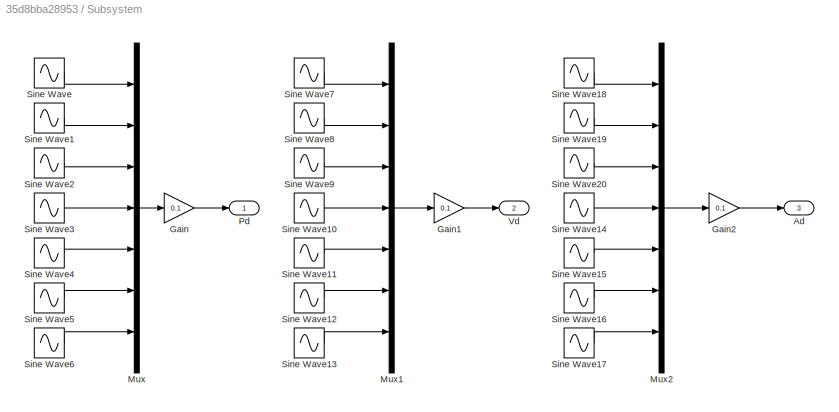
BLOCK [SubSystem] Subsystem
  Ports = [0, 3]
  RequestExecContextInheritance = off
BLOCK [Outport] Subsystem/Ad 
  IconDisplay = Port number
  Port = 3
  VectorParamsAs1DForOutWhenUnconnected = off
BLOCK [Gain] Subsystem/Gain
  Gain = 0.1
  OutDataTypeStr = Inherit: Inherit via internal rule
  ParamDataTypeStr = Inherit: Inherit via internal rule
  SaturateOnIntegerOverflow = off
BLOCK [Gain] Subsystem/Gain1
  Gain = 0.1
  OutDataTypeStr = Inherit: Inherit via internal rule
  ParamDataTypeStr = Inherit: Inherit via internal rule
  SaturateOnIntegerOverflow = off
BLOCK [Gain] Subsystem/Gain2
  Gain = 0.1
  OutDataTypeStr = Inherit: Inherit via internal rule
  ParamDataTypeStr = Inherit: Inherit via internal rule
  SaturateOnIntegerOverflow = off
BLOCK [Mux] Subsystem/Mux
  DisplayOption = bar
  Inputs = 7
  Ports = [7, 1]
BLOCK [Mux] Subsystem/Mux1
  DisplayOption = bar
  Inputs = 7
  Ports = [7, 1]
BLOCK [Mux] Subsystem/Mux2
  DisplayOption = bar
  Inputs = 7
  Ports = [7, 1]
BLOCK [Outport] Subsystem/Pd 
  IconDisplay = Port number
  VectorParamsAs1DForOutWhenUnconnected = off
BLOCK [Sin] Subsystem/Sine Wave
  Amplitude = 7
  Ports = [0, 1]
  SampleTime = 0
BLOCK [Sin] Subsystem/Sine Wave1
  Amplitude = 6
  Ports = [0, 1]
  SampleTime = 0
BLOCK [Sin] Subsystem/Sine Wave10
  Amplitude = 4
  Phase = pi/2
  Ports = [0, 1]
  SampleTime = 0
BLOCK [Sin] Subsystem/Sine Wave11
  Amplitude = 3
  Phase = pi/2
  Ports = [0, 1]
  SampleTime = 0
BLOCK [Sin] Subsystem/Sine Wave12
  Amplitude = 2
  Phase = pi/2
  Ports = [0, 1]
  SampleTime = 0
BLOCK [Sin] Subsystem/Sine Wave13
  Phase = pi/2
  Ports = [0, 1]
  SampleTime = 0
BLOCK [Sin] Subsystem/Sine Wave14
  Amplitude = 4
  Phase = pi
  Ports = [0, 1]
  SampleTime = 0
BLOCK [Sin] Subsystem/Sine Wave15
  Amplitude = 3
  Phase = pi
  Ports = [0, 1]
  SampleTime = 0
BLOCK [Sin] Subsystem/Sine Wave16
  Amplitude = 2
  Phase = pi
  Ports = [0, 1]
  SampleTime = 0
BLOCK [Sin] Subsystem/Sine Wave17
  Phase = pi
  Ports = [0, 1]
  SampleTime = 0
BLOCK [Sin] Subsystem/Sine Wave18
  Amplitude = 7
  Phase = pi
  Ports = [0, 1]
  SampleTime = 0
BLOCK [Sin] Subsystem/Sine Wave19
  Amplitude = 6
  Phase = pi
  Ports = [0, 1]
  SampleTime = 0
BLOCK [Sin] Subsystem/Sine Wave2
  Amplitude = 5
  Ports = [0, 1]
  SampleTime = 0
BLOCK [Sin] Subsystem/Sine Wave20
  Amplitude = 5
  Phase = pi
  Ports = [0, 1]
  SampleTime = 0
BLOCK [Sin] Subsystem/Sine Wave3
  Amplitude = 4
  Ports = [0, 1]
  SampleTime = 0
BLOCK [Sin] Subsystem/Sine Wave4
  Amplitude = 3
  Ports = [0, 1]
  SampleTime = 0
BLOCK [Sin] Subsystem/Sine Wave5
  Amplitude = 2
  Ports = [0, 1]
  SampleTime = 0
BLOCK [Sin] Subsystem/Sine Wave6
  Ports = [0, 1]
  SampleTime = 0
BLOCK [Sin] Subsystem/Sine Wave7
  Amplitude = 7
  Phase = pi/2
  Ports = [0, 1]
  SampleTime = 0
BLOCK [Sin] Subsystem/Sine Wave8
  Amplitude = 6
  Phase = pi/2
  Ports = [0, 1]
  SampleTime = 0
BLOCK [Sin] Subsystem/Sine Wave9
  Amplitude = 5
  Phase = pi/2
  Ports = [0, 1]
  SampleTime = 0
BLOCK [Outport] Subsystem/Vd 
  IconDisplay = Port number
  Port = 2
  VectorParamsAs1DForOutWhenUnconnected = off
BLOCK [Sum] Subtract
  InputSameDT = off
  Inputs = +-
  OutDataTypeStr = Inherit: Inherit via internal rule
  Ports = [2, 1]
  SaturateOnIntegerOverflow = off
BLOCK [Sum] Subtract1
  InputSameDT = off
  Inputs = +-
  OutDataTypeStr = Inherit: Inherit via internal rule
  Ports = [2, 1]
  SaturateOnIntegerOverflow = off
BLOCK [Sum] Subtract2
  InputSameDT = off
  Inputs = +-
  OutDataTypeStr = Inherit: Inherit via internal rule
  Ports = [2, 1]
  SaturateOnIntegerOverflow = off
LINE CTC /Ad:1 -> CTC /Add:3
LINE CTC /Add1:1 -> CTC /JointTorq:1
LINE CTC /Add:1 -> CTC /MatrixMultiply1:2
NET CTC /Config:1 -> CTC /Gravity Torque:1, CTC /Joint Space Mass Matrix:1, CTC /Subtract:2, CTC /Velocity Product Torque:1
LINE CTC /Gravity Torque:1 -> CTC /Add1:3
LINE CTC /Joint Space Mass Matrix:1 -> CTC /MatrixMultiply1:1
NET CTC /JointVel :1 -> CTC /Subtract1:2, CTC /Velocity Product Torque:2
LINE CTC /Kd:1 -> CTC /Add:2
LINE CTC /Kp:1 -> CTC /Add:1
LINE CTC /MatrixMultiply1:1 -> CTC /Add1:1
LINE CTC /Pd:1 -> CTC /Subtract:1
LINE CTC /Subtract1:1 -> CTC /Kd:1
LINE CTC /Subtract:1 -> CTC /Kp:1
LINE CTC /Vd:1 -> CTC /Subtract1:1
LINE CTC /Velocity Product Torque:1 -> CTC /Add1:2
LINE CTC :1 -> Demux:1
LINE Demux:1 -> Robot :1
LINE Demux:2 -> Robot :2
LINE Demux:3 -> Robot :3
LINE Demux:4 -> Robot :4
LINE Demux:5 -> Robot :5
LINE Demux:6 -> Robot :6
LINE Demux:7 -> Robot :7
LINE From1:1 -> Mux1:1
LINE From2:1 -> Mux2:1
LINE From3:1 -> Subtract:1
LINE From4:1 -> Subtract1:1
LINE From5:1 -> Subtract2:1
LINE From:1 -> Mux:1
LINE Mux1:1 -> Scope1:1
LINE Mux2:1 -> Scope:1
LINE Mux:1 -> Scope2:1
LINE Robot /Mux1:1 -> Robot /vitesses:1
LINE Robot /Mux2:1 -> Robot /accélérations :1
LINE Robot /Mux3:1 -> Robot /positions :1
LINE Robot /PS-Simulink Converter10:1 -> Robot /Mux1:4
LINE Robot /PS-Simulink Converter11:1 -> Robot /Mux1:5
LINE Robot /PS-Simulink Converter12:1 -> Robot /Mux1:6
LINE Robot /PS-Simulink Converter13:1 -> Robot /Mux1:7
LINE Robot /PS-Simulink Converter14:1 -> Robot /Mux2:4
LINE Robot /PS-Simulink Converter15:1 -> Robot /Mux2:5
LINE Robot /PS-Simulink Converter16:1 -> Robot /Mux2:6
LINE Robot /PS-Simulink Converter17:1 -> Robot /Mux2:7
LINE Robot /PS-Simulink Converter18:1 -> Robot /Mux2:1
LINE Robot /PS-Simulink Converter19:1 -> Robot /Mux2:2
LINE Robot /PS-Simulink Converter1:1 -> Robot /Mux3:2
LINE Robot /PS-Simulink Converter20:1 -> Robot /Mux2:3
LINE Robot /PS-Simulink Converter2:1 -> Robot /Mux3:3
LINE Robot /PS-Simulink Converter3:1 -> Robot /Mux3:4
LINE Robot /PS-Simulink Converter4:1 -> Robot /Mux3:5
LINE Robot /PS-Simulink Converter5:1 -> Robot /Mux3:6
LINE Robot /PS-Simulink Converter6:1 -> Robot /Mux3:7
LINE Robot /PS-Simulink Converter7:1 -> Robot /Mux1:1
LINE Robot /PS-Simulink Converter8:1 -> Robot /Mux1:2
LINE Robot /PS-Simulink Converter9:1 -> Robot /Mux1:3
LINE Robot /PS-Simulink Converter:1 -> Robot /Mux3:1
LINE Robot /Torque1:1 -> Robot /Simulink-PS Converter:1
LINE Robot /Torque2:1 -> Robot /Simulink-PS Converter1:1
LINE Robot /Torque3:1 -> Robot /Simulink-PS Converter2:1
LINE Robot /Torque4:1 -> Robot /Simulink-PS Converter3:1
LINE Robot /Torque5:1 -> Robot /Simulink-PS Converter4:1
LINE Robot /Torque6:1 -> Robot /Simulink-PS Converter5:1
LINE Robot /Torque7:1 -> Robot /Simulink-PS Converter6:1
NET Robot :1 -> CTC :1, Mux:2, Subtract:2
NET Robot :2 -> CTC :2, Mux1:2, Subtract1:2
NET Robot :3 -> Mux2:2, Subtract2:2
LINE Subsystem/Gain1:1 -> Subsystem/Vd :1
LINE Subsystem/Gain2:1 -> Subsystem/Ad :1
LINE Subsystem/Gain:1 -> Subsystem/Pd :1
LINE Subsystem/Mux1:1 -> Subsystem/Gain1:1
LINE Subsystem/Mux2:1 -> Subsystem/Gain2:1
LINE Subsystem/Mux:1 -> Subsystem/Gain:1
LINE Subsystem/Sine Wave10:1 -> Subsystem/Mux1:4
LINE Subsystem/Sine Wave11:1 -> Subsystem/Mux1:5
LINE Subsystem/Sine Wave12:1 -> Subsystem/Mux1:6
LINE Subsystem/Sine Wave13:1 -> Subsystem/Mux1:7
LINE Subsystem/Sine Wave14:1 -> Subsystem/Mux2:4
LINE Subsystem/Sine Wave15:1 -> Subsystem/Mux2:5
LINE Subsystem/Sine Wave16:1 -> Subsystem/Mux2:6
LINE Subsystem/Sine Wave17:1 -> Subsystem/Mux2:7
LINE Subsystem/Sine Wave18:1 -> Subsystem/Mux2:1
LINE Subsystem/Sine Wave19:1 -> Subsystem/Mux2:2
LINE Subsystem/Sine Wave1:1 -> Subsystem/Mux:2
LINE Subsystem/Sine Wave20:1 -> Subsystem/Mux2:3
LINE Subsystem/Sine Wave2:1 -> Subsystem/Mux:3
LINE Subsystem/Sine Wave3:1 -> Subsystem/Mux:4
LINE Subsystem/Sine Wave4:1 -> Subsystem/Mux:5
LINE Subsystem/Sine Wave5:1 -> Subsystem/Mux:6
LINE Subsystem/Sine Wave6:1 -> Subsystem/Mux:7
LINE Subsystem/Sine Wave7:1 -> Subsystem/Mux1:1
LINE Subsystem/Sine Wave8:1 -> Subsystem/Mux1:2
LINE Subsystem/Sine Wave9:1 -> Subsystem/Mux1:3
LINE Subsystem/Sine Wave:1 -> Subsystem/Mux:1
NET Subsystem:1 -> CTC :3, Goto:1
NET Subsystem:2 -> CTC :4, Goto1:1
NET Subsystem:3 -> CTC :5, Goto2:1
LINE Subtract1:1 -> Scope4:1
LINE Subtract2:1 -> Scope5:1
LINE Subtract:1 -> Scope3:1
PNET net1: Robot /MechanismConfiguration:RConn1 -- Robot /Solver Configuration:RConn1 -- Robot /World:RConn1 -- Robot /world:LConn1
PLINE Robot /PS-Simulink Converter10:LConn1 -- Robot /iiwa_joint_4:RConn3
PLINE Robot /PS-Simulink Converter11:LConn1 -- Robot /iiwa_joint_5:RConn3
PLINE Robot /PS-Simulink Converter12:LConn1 -- Robot /iiwa_joint_6:RConn3
PLINE Robot /PS-Simulink Converter13:LConn1 -- Robot /iiwa_joint_7:RConn3
PLINE Robot /PS-Simulink Converter14:LConn1 -- Robot /iiwa_joint_4:RConn4
PLINE Robot /PS-Simulink Converter15:LConn1 -- Robot /iiwa_joint_5:RConn4
PLINE Robot /PS-Simulink Converter16:LConn1 -- Robot /iiwa_joint_6:RConn4
PLINE Robot /PS-Simulink Converter17:LConn1 -- Robot /iiwa_joint_7:RConn4
PLINE Robot /PS-Simulink Converter18:LConn1 -- Robot /iiwa_joint_1:RConn4
PLINE Robot /PS-Simulink Converter19:LConn1 -- Robot /iiwa_joint_2:RConn4
PLINE Robot /PS-Simulink Converter1:LConn1 -- Robot /iiwa_joint_2:RConn2
PLINE Robot /PS-Simulink Converter20:LConn1 -- Robot /iiwa_joint_3:RConn4
PLINE Robot /PS-Simulink Converter2:LConn1 -- Robot /iiwa_joint_3:RConn2
PLINE Robot /PS-Simulink Converter3:LConn1 -- Robot /iiwa_joint_4:RConn2
PLINE Robot /PS-Simulink Converter4:LConn1 -- Robot /iiwa_joint_5:RConn2
PLINE Robot /PS-Simulink Converter5:LConn1 -- Robot /iiwa_joint_6:RConn2
PLINE Robot /PS-Simulink Converter6:LConn1 -- Robot /iiwa_joint_7:RConn2
PLINE Robot /PS-Simulink Converter7:LConn1 -- Robot /iiwa_joint_1:RConn3
PLINE Robot /PS-Simulink Converter8:LConn1 -- Robot /iiwa_joint_2:RConn3
PLINE Robot /PS-Simulink Converter9:LConn1 -- Robot /iiwa_joint_3:RConn3
PLINE Robot /PS-Simulink Converter:LConn1 -- Robot /iiwa_joint_1:RConn2
PLINE Robot /Simulink-PS Converter1:RConn1 -- Robot /iiwa_joint_2:LConn2
PLINE Robot /Simulink-PS Converter2:RConn1 -- Robot /iiwa_joint_3:LConn2
PLINE Robot /Simulink-PS Converter3:RConn1 -- Robot /iiwa_joint_4:LConn2
PLINE Robot /Simulink-PS Converter4:RConn1 -- Robot /iiwa_joint_5:LConn2
PLINE Robot /Simulink-PS Converter5:RConn1 -- Robot /iiwa_joint_6:LConn2
PLINE Robot /Simulink-PS Converter6:RConn1 -- Robot /iiwa_joint_7:LConn2
PLINE Robot /Simulink-PS Converter:RConn1 -- Robot /iiwa_joint_1:LConn2
PLINE Robot /iiwa_joint_1:LConn1 -- Robot /iiwa_link_0:RConn1
PLINE Robot /iiwa_joint_1:RConn1 -- Robot /iiwa_link_1:LConn1
PLINE Robot /iiwa_joint_2:LConn1 -- Robot /iiwa_link_1:RConn1
PLINE Robot /iiwa_joint_2:RConn1 -- Robot /iiwa_link_2:LConn1
PLINE Robot /iiwa_joint_3:LConn1 -- Robot /iiwa_link_2:RConn1
PLINE Robot /iiwa_joint_3:RConn1 -- Robot /iiwa_link_3:LConn1
PLINE Robot /iiwa_joint_4:LConn1 -- Robot /iiwa_link_3:RConn1
PLINE Robot /iiwa_joint_4:RConn1 -- Robot /iiwa_link_4:LConn1
PLINE Robot /iiwa_joint_5:LConn1 -- Robot /iiwa_link_4:RConn1
PLINE Robot /iiwa_joint_5:RConn1 -- Robot /iiwa_link_5:LConn1
PLINE Robot /iiwa_joint_6:LConn1 -- Robot /iiwa_link_5:RConn1
PLINE Robot /iiwa_joint_6:RConn1 -- Robot /iiwa_link_6:LConn1
PLINE Robot /iiwa_joint_7:LConn1 -- Robot /iiwa_link_6:RConn1
PLINE Robot /iiwa_joint_7:RConn1 -- Robot /iiwa_link_7:LConn1
PLINE Robot /iiwa_joint_ee:LConn1 -- Robot /iiwa_link_7:RConn2
PLINE Robot /iiwa_joint_ee:RConn1 -- Robot /iiwa_link_ee:LConn1
PLINE Robot /iiwa_joint_ee_kuka:LConn1 -- Robot /iiwa_link_7:RConn1
PLINE Robot /iiwa_joint_ee_kuka:RConn1 -- Robot /iiwa_link_ee_kuka:LConn1
PLINE Robot /iiwa_link_0/F1:RConn1 -- Robot /iiwa_link_0/iiwa_joint_1_AxisTransform:RConn1
PNET net2: Robot /iiwa_link_0/F:RConn1 -- Robot /iiwa_link_0/InertiaOriginTransform:LConn1 -- Robot /iiwa_link_0/ReferenceFrame:RConn1 -- Robot /iiwa_link_0/VisualOriginTransform:LConn1 -- Robot /iiwa_link_0/iiwa_joint_1_OriginTransform:LConn1
PLINE Robot /iiwa_link_0/Inertia:RConn1 -- Robot /iiwa_link_0/InertiaOriginTransform:RConn1
PLINE Robot /iiwa_link_0/Visual:RConn1 -- Robot /iiwa_link_0/VisualOriginTransform:RConn1
PLINE Robot /iiwa_link_0/iiwa_joint_1_AxisTransform:LConn1 -- Robot /iiwa_link_0/iiwa_joint_1_OriginTransform:RConn1
PLINE Robot /iiwa_link_0:LConn1 -- Robot /world_iiwa_joint:RConn1
PLINE Robot /iiwa_link_1/F1:RConn1 -- Robot /iiwa_link_1/iiwa_joint_2_AxisTransform:RConn1
PLINE Robot /iiwa_link_1/F:RConn1 -- Robot /iiwa_link_1/iiwa_joint_1_AxisInvTransform:RConn1
PLINE Robot /iiwa_link_1/Inertia:RConn1 -- Robot /iiwa_link_1/InertiaOriginTransform:RConn1
PNET net3: Robot /iiwa_link_1/InertiaOriginTransform:LConn1 -- Robot /iiwa_link_1/ReferenceFrame:RConn1 -- Robot /iiwa_link_1/VisualOriginTransform:LConn1 -- Robot /iiwa_link_1/iiwa_joint_1_AxisInvTransform:LConn1 -- Robot /iiwa_link_1/iiwa_joint_2_OriginTransform:LConn1
PLINE Robot /iiwa_link_1/Visual:RConn1 -- Robot /iiwa_link_1/VisualOriginTransform:RConn1
PLINE Robot /iiwa_link_1/iiwa_joint_2_AxisTransform:LConn1 -- Robot /iiwa_link_1/iiwa_joint_2_OriginTransform:RConn1
PLINE Robot /iiwa_link_2/F1:RConn1 -- Robot /iiwa_link_2/iiwa_joint_3_AxisTransform:RConn1
PLINE Robot /iiwa_link_2/F:RConn1 -- Robot /iiwa_link_2/iiwa_joint_2_AxisInvTransform:RConn1
PLINE Robot /iiwa_link_2/Inertia:RConn1 -- Robot /iiwa_link_2/InertiaOriginTransform:RConn1
PNET net4: Robot /iiwa_link_2/InertiaOriginTransform:LConn1 -- Robot /iiwa_link_2/ReferenceFrame:RConn1 -- Robot /iiwa_link_2/VisualOriginTransform:LConn1 -- Robot /iiwa_link_2/iiwa_joint_2_AxisInvTransform:LConn1 -- Robot /iiwa_link_2/iiwa_joint_3_OriginTransform:LConn1
PLINE Robot /iiwa_link_2/Visual:RConn1 -- Robot /iiwa_link_2/VisualOriginTransform:RConn1
PLINE Robot /iiwa_link_2/iiwa_joint_3_AxisTransform:LConn1 -- Robot /iiwa_link_2/iiwa_joint_3_OriginTransform:RConn1
PLINE Robot /iiwa_link_3/F1:RConn1 -- Robot /iiwa_link_3/iiwa_joint_4_AxisTransform:RConn1
PLINE Robot /iiwa_link_3/F:RConn1 -- Robot /iiwa_link_3/iiwa_joint_3_AxisInvTransform:RConn1
PLINE Robot /iiwa_link_3/Inertia:RConn1 -- Robot /iiwa_link_3/InertiaOriginTransform:RConn1
PNET net5: Robot /iiwa_link_3/InertiaOriginTransform:LConn1 -- Robot /iiwa_link_3/ReferenceFrame:RConn1 -- Robot /iiwa_link_3/VisualOriginTransform:LConn1 -- Robot /iiwa_link_3/iiwa_joint_3_AxisInvTransform:LConn1 -- Robot /iiwa_link_3/iiwa_joint_4_OriginTransform:LConn1
PLINE Robot /iiwa_link_3/Visual:RConn1 -- Robot /iiwa_link_3/VisualOriginTransform:RConn1
PLINE Robot /iiwa_link_3/iiwa_joint_4_AxisTransform:LConn1 -- Robot /iiwa_link_3/iiwa_joint_4_OriginTransform:RConn1
PLINE Robot /iiwa_link_4/F1:RConn1 -- Robot /iiwa_link_4/iiwa_joint_5_AxisTransform:RConn1
PLINE Robot /iiwa_link_4/F:RConn1 -- Robot /iiwa_link_4/iiwa_joint_4_AxisInvTransform:RConn1
PLINE Robot /iiwa_link_4/Inertia:RConn1 -- Robot /iiwa_link_4/InertiaOriginTransform:RConn1
PNET net6: Robot /iiwa_link_4/InertiaOriginTransform:LConn1 -- Robot /iiwa_link_4/ReferenceFrame:RConn1 -- Robot /iiwa_link_4/VisualOriginTransform:LConn1 -- Robot /iiwa_link_4/iiwa_joint_4_AxisInvTransform:LConn1 -- Robot /iiwa_link_4/iiwa_joint_5_OriginTransform:LConn1
PLINE Robot /iiwa_link_4/Visual:RConn1 -- Robot /iiwa_link_4/VisualOriginTransform:RConn1
PLINE Robot /iiwa_link_4/iiwa_joint_5_AxisTransform:LConn1 -- Robot /iiwa_link_4/iiwa_joint_5_OriginTransform:RConn1
PLINE Robot /iiwa_link_5/F1:RConn1 -- Robot /iiwa_link_5/iiwa_joint_6_AxisTransform:RConn1
PLINE Robot /iiwa_link_5/F:RConn1 -- Robot /iiwa_link_5/iiwa_joint_5_AxisInvTransform:RConn1
PLINE Robot /iiwa_link_5/Inertia:RConn1 -- Robot /iiwa_link_5/InertiaOriginTransform:RConn1
PNET net7: Robot /iiwa_link_5/InertiaOriginTransform:LConn1 -- Robot /iiwa_link_5/ReferenceFrame:RConn1 -- Robot /iiwa_link_5/VisualOriginTransform:LConn1 -- Robot /iiwa_link_5/iiwa_joint_5_AxisInvTransform:LConn1 -- Robot /iiwa_link_5/iiwa_joint_6_OriginTransform:LConn1
PLINE Robot /iiwa_link_5/Visual:RConn1 -- Robot /iiwa_link_5/VisualOriginTransform:RConn1
PLINE Robot /iiwa_link_5/iiwa_joint_6_AxisTransform:LConn1 -- Robot /iiwa_link_5/iiwa_joint_6_OriginTransform:RConn1
PLINE Robot /iiwa_link_6/F1:RConn1 -- Robot /iiwa_link_6/iiwa_joint_7_AxisTransform:RConn1
PLINE Robot /iiwa_link_6/F:RConn1 -- Robot /iiwa_link_6/iiwa_joint_6_AxisInvTransform:RConn1
PLINE Robot /iiwa_link_6/Inertia:RConn1 -- Robot /iiwa_link_6/InertiaOriginTransform:RConn1
PNET net8: Robot /iiwa_link_6/InertiaOriginTransform:LConn1 -- Robot /iiwa_link_6/ReferenceFrame:RConn1 -- Robot /iiwa_link_6/VisualOriginTransform:LConn1 -- Robot /iiwa_link_6/iiwa_joint_6_AxisInvTransform:LConn1 -- Robot /iiwa_link_6/iiwa_joint_7_OriginTransform:LConn1
PLINE Robot /iiwa_link_6/Visual:RConn1 -- Robot /iiwa_link_6/VisualOriginTransform:RConn1
PLINE Robot /iiwa_link_6/iiwa_joint_7_AxisTransform:LConn1 -- Robot /iiwa_link_6/iiwa_joint_7_OriginTransform:RConn1
PLINE Robot /iiwa_link_7/F1:RConn1 -- Robot /iiwa_link_7/iiwa_joint_ee_OriginTransform:RConn1
PLINE Robot /iiwa_link_7/F2:RConn1 -- Robot /iiwa_link_7/iiwa_joint_ee_kuka_OriginTransform:RConn1
PLINE Robot /iiwa_link_7/F:RConn1 -- Robot /iiwa_link_7/iiwa_joint_7_AxisInvTransform:RConn1
PLINE Robot /iiwa_link_7/Inertia:RConn1 -- Robot /iiwa_link_7/InertiaOriginTransform:RConn1
PNET net9: Robot /iiwa_link_7/InertiaOriginTransform:LConn1 -- Robot /iiwa_link_7/ReferenceFrame:RConn1 -- Robot /iiwa_link_7/VisualOriginTransform:LConn1 -- Robot /iiwa_link_7/iiwa_joint_7_AxisInvTransform:LConn1 -- Robot /iiwa_link_7/iiwa_joint_ee_OriginTransform:LConn1 -- Robot /iiwa_link_7/iiwa_joint_ee_kuka_OriginTransform:LConn1
PLINE Robot /iiwa_link_7/Visual:RConn1 -- Robot /iiwa_link_7/VisualOriginTransform:RConn1
PLINE Robot /iiwa_link_ee/F:RConn1 -- Robot /iiwa_link_ee/ReferenceFrame:RConn1
PLINE Robot /iiwa_link_ee_kuka/F:RConn1 -- Robot /iiwa_link_ee_kuka/ReferenceFrame:RConn1
PLINE Robot /world/F1:RConn1 -- Robot /world/world_iiwa_joint_OriginTransform:RConn1
PNET net10: Robot /world/F:RConn1 -- Robot /world/ReferenceFrame:RConn1 -- Robot /world/world_iiwa_joint_OriginTransform:LConn1
PLINE Robot /world:RConn1 -- Robot /world_iiwa_joint:LConn1
note: NET lines group one-source signal fan-out (src -> all destinations, sorted); 1:1 wires keep LINE; PNET lines group multi-terminal physical nets as a canonical sorted terminal list (undirected conserving connections); 2-terminal nets keep the pairwise PLINE form
